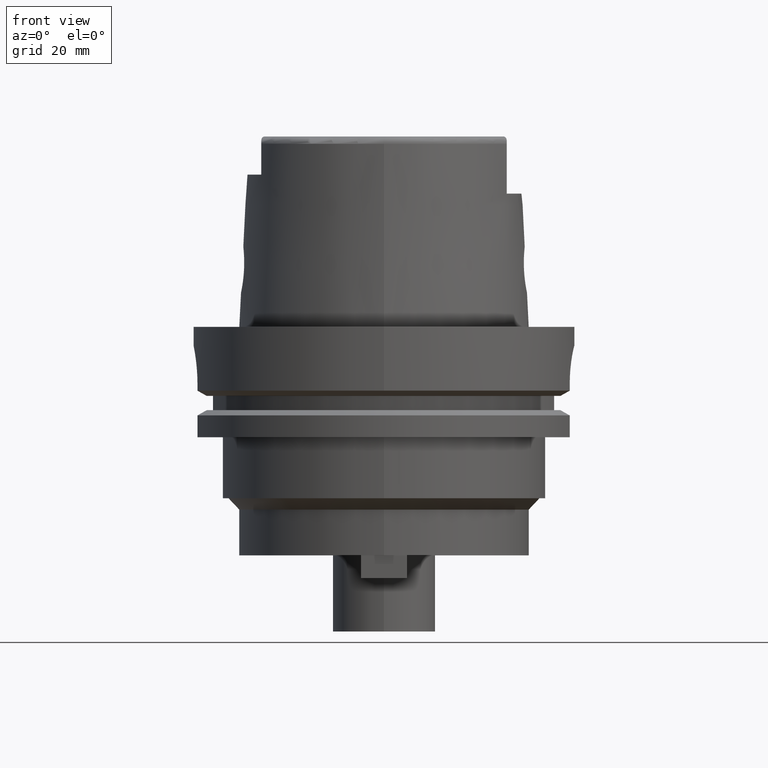
[diagram: clean part render]
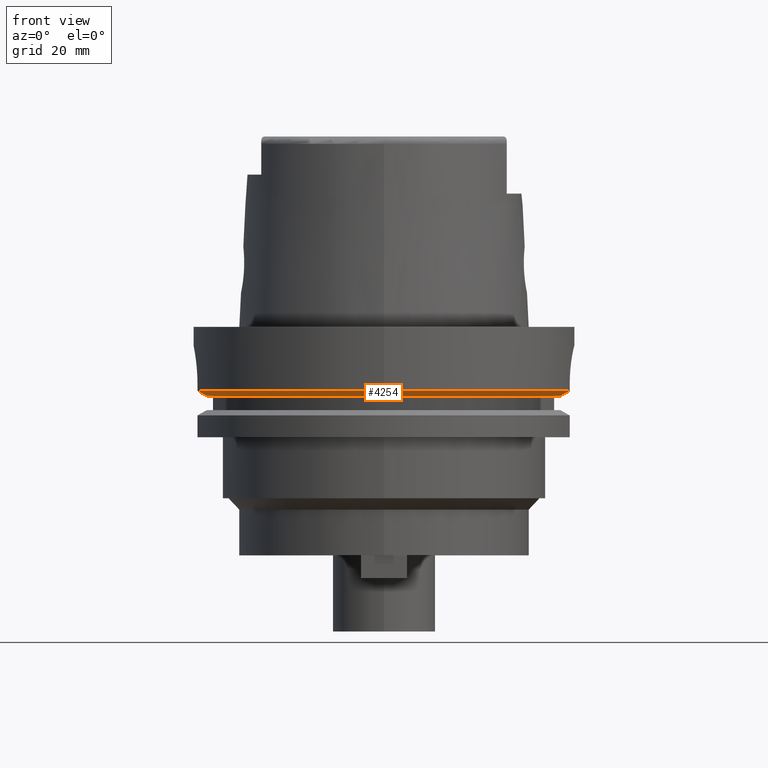
[diagram: same view with one face highlighted and labeled with its STEP entity id]
A machine part, front view. The second image highlights one B-rep face of the part: STEP entity #4254.
In plain terms, the highlighted conical surface has half-angle 60 deg.
Its self-contained STEP definition (entity closure, byte-faithful):
#1890=CARTESIAN_POINT('',(-4.656083740330E1,-1.E1,-1.8125E1));
#1891=CARTESIAN_POINT('',(-4.683084020607E1,-1.E1,-1.797258933137E1));
#1892=CARTESIAN_POINT('',(-4.737076227628E1,-1.E1,-1.766769351207E1));
#1893=CARTESIAN_POINT('',(-4.818041161677E1,-1.E1,-1.721015586611E1));
#1894=CARTESIAN_POINT('',(-4.872002593967E1,-1.E1,-1.690500907969E1));
#1895=CARTESIAN_POINT('',(-4.898979485566E1,-1.E1,-1.675240473581E1));
#1900=CARTESIAN_POINT('',(0.E0,0.E0,-1.675240473581E1));
#1901=DIRECTION('',(0.E0,0.E0,1.E0));
#1902=DIRECTION('',(-9.797958971133E-1,-2.E-1,0.E0));
#1903=AXIS2_PLACEMENT_3D('',#1900,#1901,#1902);
#1908=CARTESIAN_POINT('',(0.E0,0.E0,-1.675240473581E1));
#1909=DIRECTION('',(0.E0,0.E0,1.E0));
#1910=DIRECTION('',(0.E0,-1.E0,0.E0));
#1911=AXIS2_PLACEMENT_3D('',#1908,#1909,#1910);
#1916=CARTESIAN_POINT('',(4.877499359303E1,-1.1E1,-1.675240473581E1));
#1917=CARTESIAN_POINT('',(4.850399904748E1,-1.1E1,-1.690503024962E1));
#1918=CARTESIAN_POINT('',(4.796191616323E1,-1.1E1,-1.721020456770E1));
#1919=CARTESIAN_POINT('',(4.714851446810E1,-1.1E1,-1.766774350267E1));
#1920=CARTESIAN_POINT('',(4.660605711265E1,-1.1E1,-1.797261191789E1));
#1921=CARTESIAN_POINT('',(4.633477721644E1,-1.1E1,-1.8125E1));
#1933=CARTESIAN_POINT('',(0.E0,0.E0,-1.8125E1));
#1934=DIRECTION('',(0.E0,0.E0,1.E0));
#1935=DIRECTION('',(-9.777047459300E-1,-2.099843560504E-1,0.E0));
#1936=AXIS2_PLACEMENT_3D('',#1933,#1934,#1935);
#1941=CARTESIAN_POINT('',(0.E0,0.E0,-1.8125E1));
#1942=DIRECTION('',(0.E0,0.E0,1.E0));
#1943=DIRECTION('',(0.E0,-1.E0,0.E0));
#1944=AXIS2_PLACEMENT_3D('',#1941,#1942,#1943);
#2719=CARTESIAN_POINT('',(-4.898979485566E1,-1.E1,-1.675240473581E1));
#2720=VERTEX_POINT('',#2719);
#2721=VERTEX_POINT('',#1890);
#2770=CARTESIAN_POINT('',(-1.598721155460E-14,-4.762259526419E1,-1.8125E1));
#2771=CARTESIAN_POINT('',(4.633477721644E1,-1.1E1,-1.8125E1));
#2772=VERTEX_POINT('',#2770);
#2773=VERTEX_POINT('',#2771);
#2780=CARTESIAN_POINT('',(0.E0,-5.E1,-1.675240473581E1));
#2781=VERTEX_POINT('',#2780);
#2782=CARTESIAN_POINT('',(4.877499359303E1,-1.1E1,-1.675240473581E1));
#2783=VERTEX_POINT('',#2782);
#4239=CARTESIAN_POINT('',(0.E0,0.E0,-1.743870236790E1));
#4240=DIRECTION('',(0.E0,0.E0,1.E0));
#4241=DIRECTION('',(0.E0,1.E0,0.E0));
#4242=AXIS2_PLACEMENT_3D('',#4239,#4240,#4241);
#4243=CONICAL_SURFACE('',#4242,4.881129763209E1,6.E1);
#4244=ORIENTED_EDGE('',*,*,#3965,.T.);
#4245=ORIENTED_EDGE('',*,*,#4086,.T.);
#4246=ORIENTED_EDGE('',*,*,#4188,.T.);
#4247=ORIENTED_EDGE('',*,*,#3926,.T.);
#4249=ORIENTED_EDGE('',*,*,#4248,.F.);
#4251=ORIENTED_EDGE('',*,*,#4250,.F.);
#4252=EDGE_LOOP('',(#4244,#4245,#4246,#4247,#4249,#4251));
#4253=FACE_OUTER_BOUND('',#4252,.F.);
#1896=B_SPLINE_CURVE_WITH_KNOTS('',3,(#1890,#1891,#1892,#1893,#1894,#1895),
.UNSPECIFIED.,.F.,.F.,(4,1,1,4),(0.E0,3.333333333333E-1,6.666666666667E-1,1.E0),
.UNSPECIFIED.);
#1904=CIRCLE('',#1903,5.E1);
#1912=CIRCLE('',#1911,5.E1);
#1922=B_SPLINE_CURVE_WITH_KNOTS('',3,(#1916,#1917,#1918,#1919,#1920,#1921),
.UNSPECIFIED.,.F.,.F.,(4,1,1,4),(0.E0,3.333333333333E-1,6.666666666667E-1,1.E0),
.UNSPECIFIED.);
#1937=CIRCLE('',#1936,4.762259526419E1);
#1945=CIRCLE('',#1944,4.762259526419E1);
#3926=EDGE_CURVE('',#2783,#2773,#1922,.T.);
#3965=EDGE_CURVE('',#2721,#2720,#1896,.T.);
#4086=EDGE_CURVE('',#2720,#2781,#1904,.T.);
#4188=EDGE_CURVE('',#2781,#2783,#1912,.T.);
#4248=EDGE_CURVE('',#2772,#2773,#1945,.T.);
#4250=EDGE_CURVE('',#2721,#2772,#1937,.T.);
#4254=ADVANCED_FACE('',(#4253),#4243,.T.);